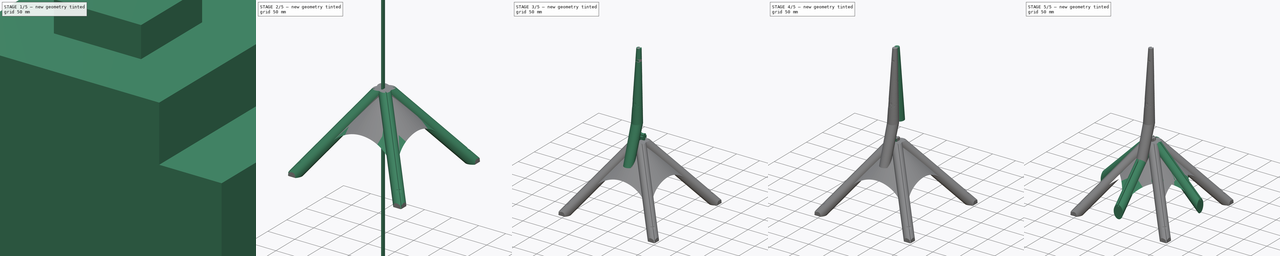
[diagram: build sequence overview — one tinted view per stage of 5, left to right]
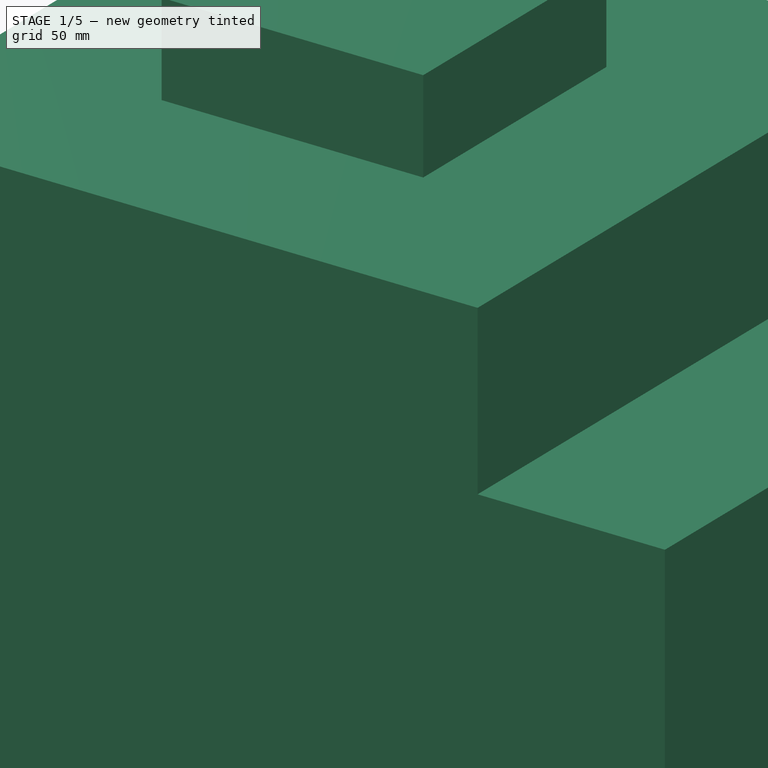
[diagram: stage 1 of 5 — iso view after this stage's code; geometry added in this stage tinted green]
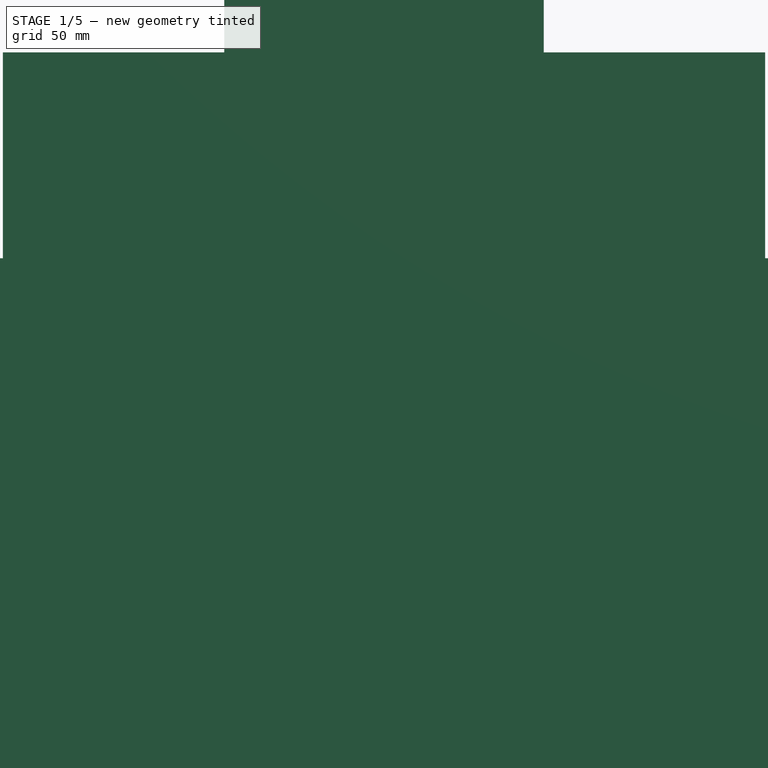
[diagram: stage 1 of 5 — front view after this stage's code; geometry added in this stage tinted green]
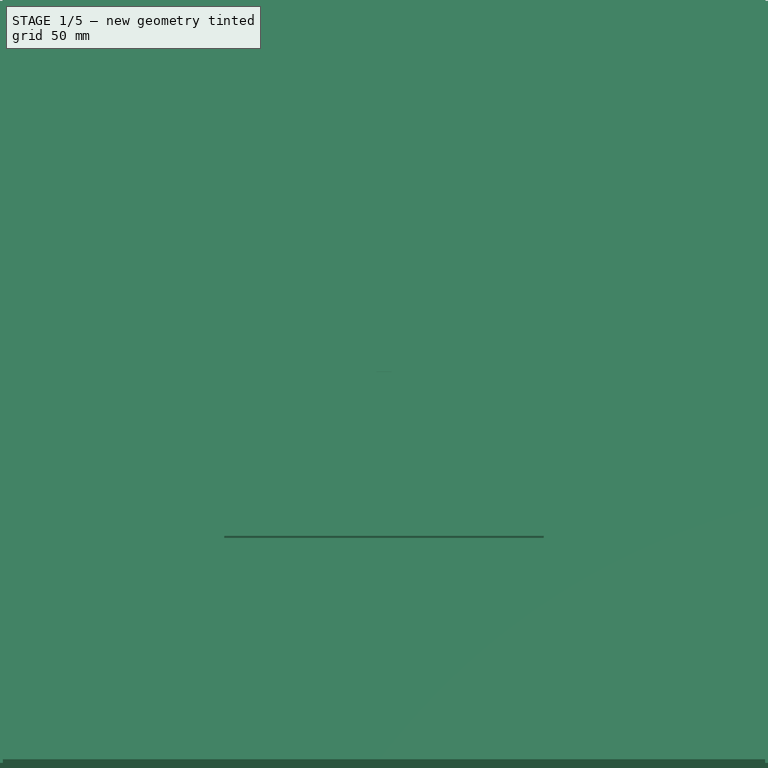
[diagram: stage 1 of 5 — top view after this stage's code; geometry added in this stage tinted green]
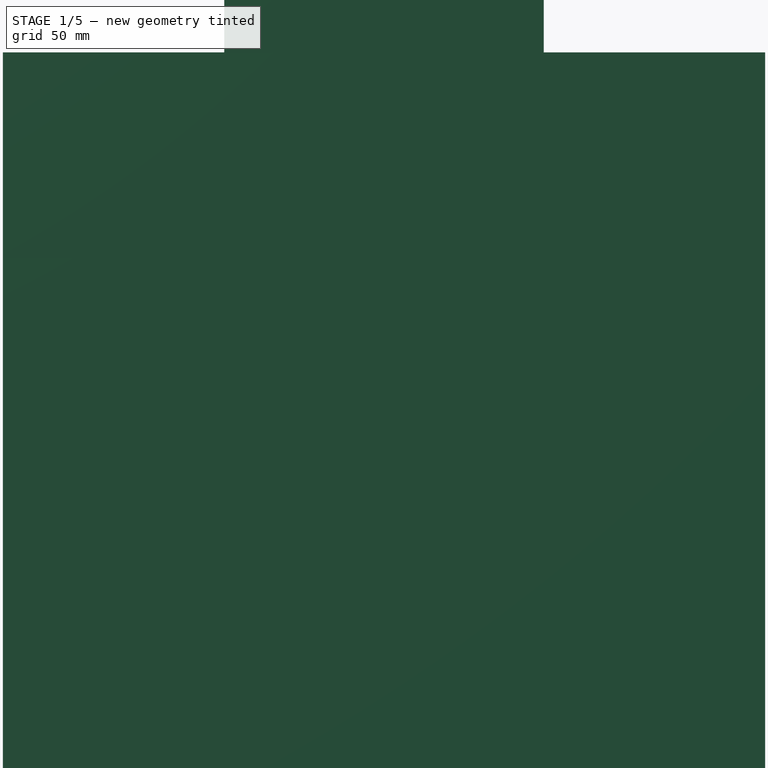
[diagram: stage 1 of 5 — right view after this stage's code; geometry added in this stage tinted green]
FCSTD DOCUMENT  (FreeCAD 0.21R31391 (Git))
Label: freestanding-mount-mk2
License: All rights reserved
LicenseURL: https://en.wikipedia.org/wiki/All_rights_reserved
objects: Sketcher::SketchObject×20, Part::Extrusion×14, Part::Cut×11, Part::MultiFuse×8, PartDesign::Plane×7, Part::FeaturePython×3, Part::MultiCommon×3, Part::Loft×2, App::Link×1, Part::Revolution×1, PartDesign::Body×1
note: 70 computed .brp shape members not serialized (recipe doc carries the construction recipe); baked Part::Feature solids carry a one-line shape summary decoded from their .brp

FEATURE [PartDesign::Plane] DatumPlane  label="zip plane"
  AttachmentOffset = pos=(0,0,180) rot=(0,0,1;0rad)
  Length = 68.4368
  MapMode = 5
  Placement = pos=(0,0,180) rot=(0,0,1;0rad)
  ResizeMode = 0
  Support = -> [XY_Plane]
  Width = 188.394
FEATURE [Sketcher::SketchObject] Sketch002  label="zip tool sk"
  ExternalGeometry = -> [Sketch001]
  FullyConstrained = true
  MapMode = 5
  Placement = pos=(0,0,180) rot=(0,0,1;0rad)
  Support = -> [DatumPlane]
  sketch-geometry (5):
    g0: LineSegment StartX=-5 StartY=0.9 StartZ=0 EndX=5 EndY=0.9 EndZ=0
    g1: LineSegment StartX=5 StartY=0.9 StartZ=0 EndX=5 EndY=10.9 EndZ=0
    g2: LineSegment StartX=5 StartY=10.9 StartZ=0 EndX=-5 EndY=10.9 EndZ=0
    g3: LineSegment StartX=-5 StartY=10.9 StartZ=0 EndX=-5 EndY=0.9 EndZ=0
    g4: Circle CenterX=0 CenterY=0 CenterZ=0 NormalX=0 NormalY=0 NormalZ=1 AngleXU=0 Radius=0.9
  constraints (13):
    c: Coincident(g0,g1)
    c: Coincident(g1,g2)
    c: Coincident(g2,g3)
    c: Coincident(g3,g0)
    c: Horizontal(g2)
    c: Vertical(g1)
    c: Vertical(g3)
    c: Coincident(g4,g-3)
    c: Tangent(g4,g0)
    c: PointOnObject(g-3,g4)
    c: Symmetric(g0,g0,g-2)
    c: Equal(g2,g1)
    c: DistanceY(g1,g1) = 10
FEATURE [Part::Extrusion] Extrude001  label="zip tool"
  Base = -> Sketch002
  Dir = (0,0,1)
  DirMode = 2
  FaceMakerClass = Part::FaceMakerBullseye
  LengthFwd = 5
  LengthRev = 0
  Solid = true
  Symmetric = false
FEATURE [Sketcher::SketchObject] Sketch007  label="cone sk"
  ExternalGeometry = -> [Sketch003,Sketch]
  FullyConstrained = true
  MapMode = 5
  Placement = pos=(0,0,0) rot=(0.57735,0.57735,0.57735;2.0944rad)
  Support = -> [YZ_Plane]
  sketch-geometry (5):
    g0: LineSegment StartX=3.68629 StartY=-15 StartZ=0 EndX=98.6432 EndY=-109.957 EndZ=0
    g1: LineSegment StartX=98.6432 StartY=-109.957 StartZ=0 EndX=0 EndY=-109.957 EndZ=0
    g2: LineSegment StartX=0 StartY=-109.957 StartZ=0 EndX=0 EndY=-15 EndZ=0
    g3: LineSegment StartX=0 StartY=-15 StartZ=0 EndX=3.68629 EndY=-15 EndZ=0
    g4: LineSegment StartX=3.68629 StartY=-15 StartZ=0 EndX=9.34315 EndY=-9.34315 EndZ=0
  constraints (15):
    c: Horizontal(g1)
    c: Coincident(g2,g1)
    c: PointOnObject(g2,g-3)
    c: Vertical(g2)
    c: Coincident(g3,g2)
    c: PointOnObject(g1,g-2)
    c: Angle(g0,g1) = 0.785398
    c: Coincident(g0,g1)
    c: DistanceY(g-4,g0) = 35
    c: Coincident(g3,g0)
    c: PointOnObject(g-3,g3)
    c: Coincident(g4,g0)
    c: PointOnObject(g4,g-4)
    c: Perpendicular(g-4,g4)
    c: Distance(g4) = 8
FEATURE [App::Link] Link  label="cone sk001"
  LinkTransform = true
  LinkedObject = -> Body [Sketch007.]
FEATURE [Part::Revolution] Revolve  label="cone"
  Angle = 360
  Axis = (0,0,1)
  Base = (0,0,0)
  FaceMakerClass = Part::FaceMakerBullseye
  Solid = true
  Source = -> Link
  Symmetric = false
FEATURE [Sketcher::SketchObject] Sketch008  label="leg trim tool sk"
  ExternalGeometry = -> [Sketch003]
  FullyConstrained = true
  MapMode = 5
  Placement = pos=(0,0,0) rot=(0.57735,0.57735,0.57735;2.0944rad)
  Support = -> [YZ_Plane]
  sketch-geometry (4):
    g0: LineSegment StartX=-250 StartY=-15 StartZ=0 EndX=250 EndY=-15 EndZ=0
    g1: LineSegment StartX=250 StartY=-15 StartZ=0 EndX=250 EndY=-515 EndZ=0
    g2: LineSegment StartX=250 StartY=-515 StartZ=0 EndX=-250 EndY=-515 EndZ=0
    g3: LineSegment StartX=-250 StartY=-515 StartZ=0 EndX=-250 EndY=-15 EndZ=0
  constraints (11):
    c: Coincident(g0,g1)
    c: Coincident(g1,g2)
    c: Coincident(g2,g3)
    c: Coincident(g3,g0)
    c: Horizontal(g2)
    c: Vertical(g1)
    c: Vertical(g3)
    c: PointOnObject(g-3,g0)
    c: Symmetric(g0,g0,g-2)
    c: Equal(g2,g1)
    c: DistanceY(g1,g1) = 500
FEATURE [Part::Extrusion] Extrude006  label="leg trim tool"
  Base = -> Sketch008
  Dir = (1,-1e-16,1e-16)
  DirMode = 2
  FaceMakerClass = Part::FaceMakerBullseye
  LengthFwd = 500
  LengthRev = 0
  Solid = true
  Symmetric = true
FEATURE [PartDesign::Plane] DatumPlane001  label="cone scoop plane"
  AttachmentOffset = pos=(0,0,0) rot=(1,0,0;0.785398rad)
  Length = 353.87
  MapMode = 2
  Placement = pos=(0,0,0) rot=(0.357407,0.862856,0.357407;4.56541rad)
  ResizeMode = 0
  Support = -> [Z_Axis]
  Width = 199.446
FEATURE [Sketcher::SketchObject] Sketch009  label="cone scoop tool sk"
  ExternalGeometry = -> [Sketch]
  FullyConstrained = true
  MapMode = 5
  Placement = pos=(0,0,0) rot=(-0.357407,-0.862856,-0.357407;1.71777rad)
  Support = -> [DatumPlane001]
  sketch-geometry (7):
    g0: Ellipse CenterX=-355.418 CenterY=0 CenterZ=0 NormalX=0 NormalY=0 NormalZ=1 MajorRadius=283.822 MinorRadius=134.368 AngleXU=0
    g1: LineSegment StartX=-71.5964 StartY=0 StartZ=0 EndX=-639.24 EndY=0 EndZ=0
    g2: LineSegment StartX=-355.418 StartY=134.368 StartZ=0 EndX=-355.418 EndY=-134.368 EndZ=0
    g3: GeomPoint X=-105.418 Y=0 Z=0
    g4: GeomPoint X=-605.418 Y=0 Z=0
    g5: LineSegment StartX=-119.576 StartY=74.7548 StartZ=0 EndX=-114.957 EndY=81.2868 EndZ=0
    g6: GeomPoint X=-119.576 Y=74.7548 Z=0
  constraints (12):
    c: InternalAlignment(g1-g4 -> g0) x4
    c: PointOnObject(g3,g-1)
    c: PointOnObject(g0,g-1)
    c: PointOnObject(g5,g0)
    c: PointOnObject(g5,g-3)
    c: Perpendicular(g-3,g5)
    c: Distance(g5) = 8
    c: DistanceX(g-3,g5) = 30
    c: PointOnObject(g6,g0)
    c: PointOnObject(g6,g5)
    c: Perpendicular(g0,g5,g6) = 4.71239
    c: DistanceX(g0,g3) = 250
FEATURE [Part::Extrusion] Extrude007  label="cone scoop tool"
  Base = -> Sketch009
  Dir = (-0.707107,0.707107,-5e-16)
  DirMode = 2
  FaceMakerClass = Part::FaceMakerBullseye
  LengthFwd = 600
  LengthRev = 0
  Solid = true
  Symmetric = true
FEATURE [Part::FeaturePython] Array002  # Draft array (typed FeaturePython)
  AlwaysSyncPlacement = false
  Angle = 90
  ArrayType = 1
  Axis = (0,0,1)
  Base = -> Extrude007
  Center = (0,0,0)
  Count = 2
  ExpandArray = false
  Fuse = true
  IntervalAxis = (0,0,0)
  IntervalX = (50,0,0)
  IntervalY = (0,50,0)
  IntervalZ = (0,0,50)
  NumberCircles = 3
  NumberPolar = 2
  NumberX = 2
  NumberY = 2
  NumberZ = 1
  PlacementList = 2 placements: [(0,0,0),(0,0,0)]
  RadialDistance = 50
  ScaleList = (2) [(1,1,1),(1,1,1)]
  Symmetry = 1
  TangentialDistance = 25
FEATURE [Part::Cut] Cut003  label="scooped code"
  Base = -> Revolve
  Tool = -> Array002
FEATURE [Sketcher::SketchObject] Sketch010  label="foot pad tool sk"
  ExternalGeometry = -> [Sketch]
  FullyConstrained = true
  MapMode = 5
  Placement = pos=(0,0,0) rot=(0.57735,0.57735,0.57735;2.0944rad)
  Support = -> [YZ_Plane]
  sketch-geometry (4):
    g0: LineSegment StartX=-250 StartY=-149.957 StartZ=0 EndX=250 EndY=-149.957 EndZ=0
    g1: LineSegment StartX=250 StartY=-149.957 StartZ=0 EndX=250 EndY=-649.957 EndZ=0
    g2: LineSegment StartX=250 StartY=-649.957 StartZ=0 EndX=-250 EndY=-649.957 EndZ=0
    g3: LineSegment StartX=-250 StartY=-649.957 StartZ=0 EndX=-250 EndY=-149.957 EndZ=0
  constraints (11):
    c: Coincident(g0,g1)
    c: Coincident(g1,g2)
    c: Coincident(g2,g3)
    c: Coincident(g3,g0)
    c: Horizontal(g2)
    c: Vertical(g1)
    c: Vertical(g3)
    c: Symmetric(g0,g0,g-2)
    c: Equal(g0,g1)
    c: DistanceY(g0,g-3) = 5
    c: DistanceY(g1,g1) = 500
FEATURE [Part::Extrusion] Extrude008  label="foot pad tool"
  Base = -> Sketch010
  Dir = (1,-1e-16,1e-16)
  DirMode = 2
  FaceMakerClass = Part::FaceMakerBullseye
  LengthFwd = 800
  LengthRev = 0
  Solid = true
  Symmetric = true
FEATURE [PartDesign::Plane] DatumPlane006  label="plane build plate"
  Length = 73.4521
  MapMode = 1
  Placement = pos=(8.88e-14,250,-149.957) rot=(0,0,1;0rad)
  ResizeMode = 0
  Support = -> [Sketch010]
  Width = 298.452
FEATURE [Sketcher::SketchObject] Sketch017  label="build volume sk"
  ExternalGeometry = -> [Sketch]
  FullyConstrained = true
  MapMode = 5
  Placement = pos=(8.88e-14,250,-149.957) rot=(0,0,1;0rad)
  Support = -> [DatumPlane006]
  sketch-geometry (5):
    g0: LineSegment StartX=-104.75 StartY=-145.25 StartZ=0 EndX=-104.75 EndY=-354.75 EndZ=0
    g1: LineSegment StartX=-104.75 StartY=-354.75 StartZ=0 EndX=104.75 EndY=-354.75 EndZ=0
    g2: LineSegment StartX=104.75 StartY=-354.75 StartZ=0 EndX=104.75 EndY=-145.25 EndZ=0
    g3: LineSegment StartX=104.75 StartY=-145.25 StartZ=0 EndX=-104.75 EndY=-145.25 EndZ=0
    g4: Circle CenterX=-1.071e-13 CenterY=-250 CenterZ=0 NormalX=0 NormalY=0 NormalZ=1 AngleXU=0 Radius=148.139
  constraints (14):
    c: Coincident(g0,g1)
    c: Coincident(g1,g2)
    c: Coincident(g2,g3)
    c: Coincident(g3,g0)
    c: Equal(g0,g1)
    c: Equal(g0,g2)
    c: Equal(g0,g3)
    c: PointOnObject(g0,g4)
    c: PointOnObject(g1,g4)
    c: PointOnObject(g2,g4)
    c: PointOnObject(g3,g4)
    c: Coincident(g4,g-3)
    c: Horizontal(g3)
    c: DistanceX(g3,g3) = 209.5
FEATURE [Part::Extrusion] Extrude011  label="build volume"
  Base = -> Sketch017
  Dir = (0,0,1)
  DirMode = 2
  FaceMakerClass = Part::FaceMakerBullseye
  LengthFwd = 209
  LengthRev = 0
  Solid = true
  Symmetric = false
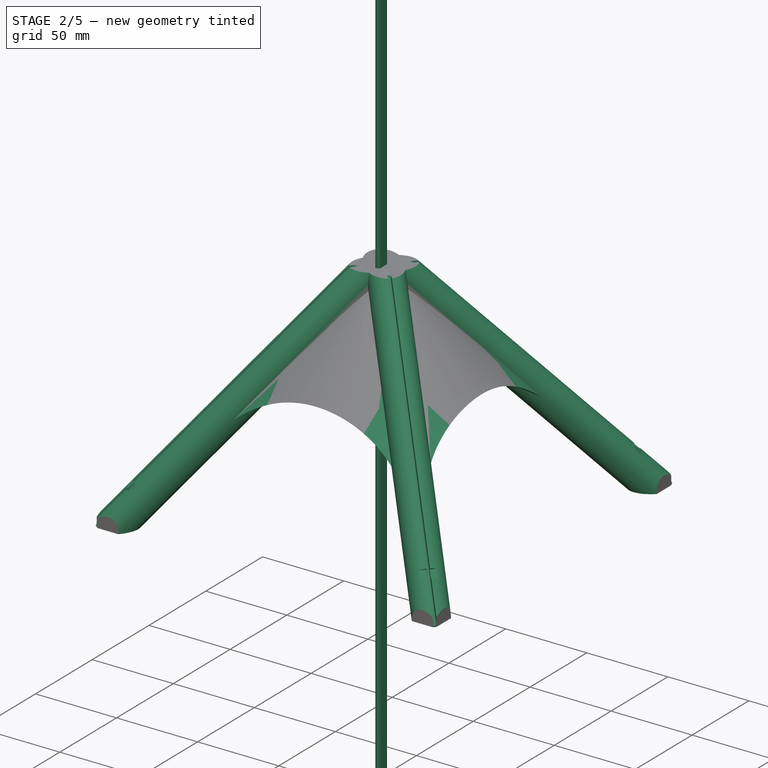
[diagram: stage 2 of 5 — iso view after this stage's code; geometry added in this stage tinted green]
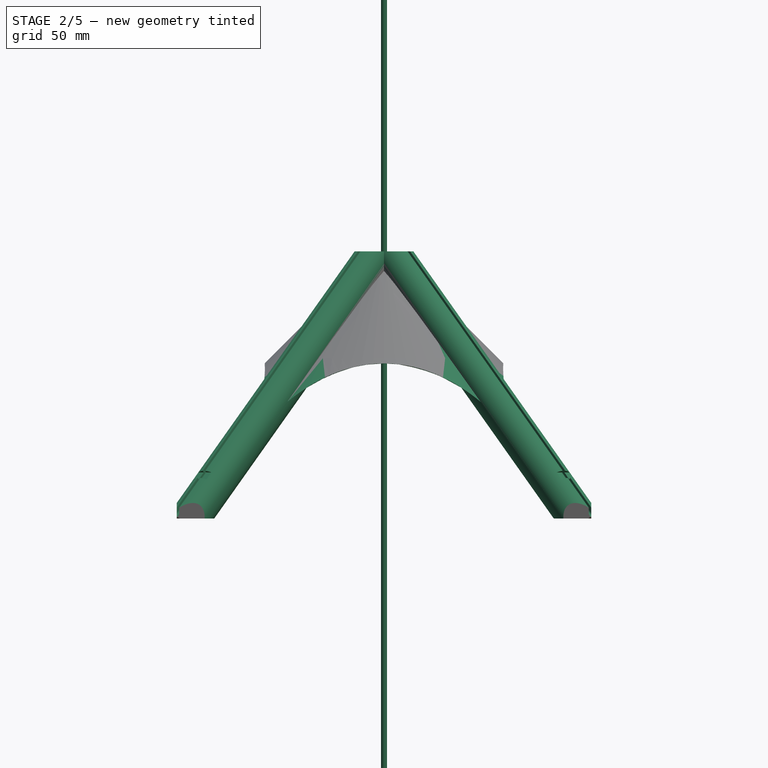
[diagram: stage 2 of 5 — front view after this stage's code; geometry added in this stage tinted green]
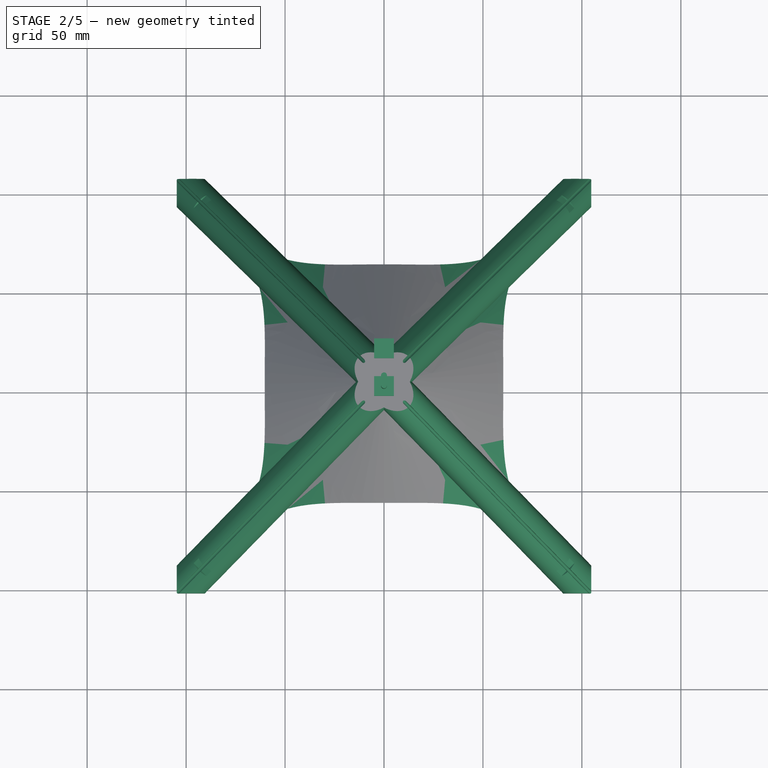
[diagram: stage 2 of 5 — top view after this stage's code; geometry added in this stage tinted green]
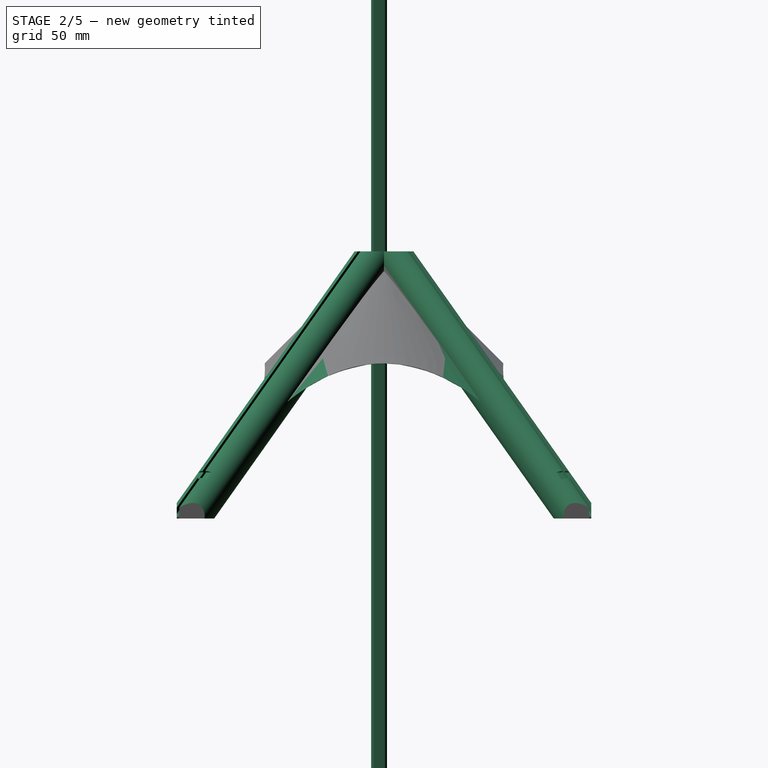
[diagram: stage 2 of 5 — right view after this stage's code; geometry added in this stage tinted green]
FEATURE [Sketcher::SketchObject] Sketch  label="plan sk"
  FullyConstrained = true
  MapMode = 5
  Placement = pos=(0,0,0) rot=(0.57735,0.57735,0.57735;2.0944rad)
  Support = -> [YZ_Plane]
  sketch-geometry (8):
    g0: LineSegment StartX=0 StartY=0 StartZ=0 EndX=144.957 EndY=-144.957 EndZ=0
    g1: Circle CenterX=0 CenterY=-10 CenterZ=0 NormalX=0 NormalY=0 NormalZ=1 AngleXU=0 Radius=2.625
    g2: LineSegment StartX=-3 StartY=-13 StartZ=0 EndX=3 EndY=-13 EndZ=0
    g3: LineSegment StartX=3 StartY=-13 StartZ=0 EndX=3 EndY=-7 EndZ=0
    g4: LineSegment StartX=3 StartY=-7 StartZ=0 EndX=-3 EndY=-7 EndZ=0
    g5: LineSegment StartX=-3 StartY=-7 StartZ=0 EndX=-3 EndY=-13 EndZ=0
    g6: Circle CenterX=0 CenterY=-10 CenterZ=0 NormalX=0 NormalY=0 NormalZ=1 AngleXU=0 Radius=4.24264
    g7: LineSegment StartX=0 StartY=0 StartZ=0 EndX=0 EndY=165 EndZ=0
  constraints (23):
    c: Coincident(g0,g-1)
    c: PointOnObject(g1,g-2)
    c: Coincident(g2,g3)
    c: Coincident(g3,g4)
    c: Coincident(g4,g5)
    c: Coincident(g5,g2)
    c: Equal(g2,g3)
    c: Equal(g2,g4)
    c: Equal(g2,g5)
    c: PointOnObject(g2,g6)
    c: PointOnObject(g3,g6)
    c: PointOnObject(g4,g6)
    c: PointOnObject(g5,g6)
    c: Coincident(g6,g1)
    c: Horizontal(g2)
    c: DistanceX(g2,g2) = 6
    c: Diameter(g1) = 5.25
    c: DistanceY(g1,g0) = 10
    c: Angle(g0,g-1) = 0.785398
    c: Distance(g0) = 205
    c: Coincident(g7,g0)
    c: PointOnObject(g7,g-2)
    c: DistanceY(g7,g7) = 165
FEATURE [Sketcher::SketchObject] Sketch001  label="leg sk"
  FullyConstrained = true
  MapMode = 5
  Support = -> [XY_Plane]
  sketch-geometry (4):
    g0: ArcOfCircle CenterX=0 CenterY=0 CenterZ=0 NormalX=0 NormalY=0 NormalZ=1 AngleXU=0 Radius=0.9 StartAngle=3.14159 EndAngle=6.28319
    g1: LineSegment StartX=0.9 StartY=-2e-16 StartZ=0 EndX=0.9 EndY=1.95942 EndZ=0
    g2: LineSegment StartX=-0.9 StartY=1.95942 StartZ=0 EndX=-0.9 EndY=0 EndZ=0
    g3: ArcOfCircle CenterX=0 CenterY=-8 CenterZ=0 NormalX=0 NormalY=0 NormalZ=1 AngleXU=0 Radius=10 StartAngle=1.66092 EndAngle=7.76386
  constraints (11):
    c: Tangent(g0,g1) = -1.5708
    c: Tangent(g2,g0) = -1.5708
    c: Coincident(g3,g1)
    c: Coincident(g3,g2)
    c: Diameter(g3) = 20
    c: Vertical(g2)
    c: Vertical(g1)
    c: Diameter(g0) = 1.8
    c: Coincident(g0,g-1)
    c: PointOnObject(g3,g-2)
    c: DistanceY(g3,g0) = 8
FEATURE [Part::Extrusion] Extrude  label="leg"
  Base = -> Sketch001
  Dir = (0,0,1)
  DirMode = 2
  FaceMakerClass = Part::FaceMakerBullseye
  LengthFwd = 210
  LengthRev = 0
  Solid = true
  Symmetric = false
FEATURE [Part::Cut] Cut  label="leg w zip"
  Base = -> Extrude
  Placement = pos=(0,0,0) rot=(1,0,0;2.35619rad)
  Tool = -> Extrude001
FEATURE [Part::FeaturePython] Array  label="leg array"  # Draft array (typed FeaturePython)
  AlwaysSyncPlacement = false
  Angle = 360
  ArrayType = 1
  Axis = (0,0,1)
  Base = -> Cut
  Center = (0,0,0)
  Count = 4
  ExpandArray = false
  Fuse = true
  IntervalAxis = (0,0,0)
  IntervalX = (50,0,0)
  IntervalY = (0,50,0)
  IntervalZ = (0,0,50)
  NumberCircles = 3
  NumberPolar = 4
  NumberX = 2
  NumberY = 2
  NumberZ = 1
  PlacementList = 4 placements: [(0,0,0),(0,0,0),(0,0,0),(0,0,0)]
  RadialDistance = 50
  ScaleList = (4) [(1,1,1),(1,1,1),(1,1,1),(1,1,1)]
  Symmetry = 1
  TangentialDistance = 25
FEATURE [Part::MultiCommon] Common  label="trimmed legs"
  Shapes = -> [Array,Extrude006]
FEATURE [Part::MultiFuse] Fusion001  label="fuse-legs-cone"
  Shapes = -> [Cut003,Common]
FEATURE [Part::Cut] Cut004  label="foot pad cut"
  Base = -> Fusion001
  Placement = pos=(0,0,0) rot=(0,0,1;0.785398rad)
  Tool = -> Extrude008
FEATURE [Sketcher::SketchObject] Sketch015  label="mast slot sk"
  ExternalGeometry = -> [Sketch]
  FullyConstrained = true
  MapMode = 5
  Placement = pos=(-3.55e-14,8,168) rot=(0,0,1;0rad)
  Support = -> [DatumPlane004]
  sketch-geometry (4):
    g0: ArcOfCircle CenterX=-1.1e-15 CenterY=-8 CenterZ=0 NormalX=0 NormalY=0 NormalZ=1 AngleXU=0 Radius=1.5 StartAngle=3e-16 EndAngle=3.14159
    g1: ArcOfCircle CenterX=0 CenterY=-13 CenterZ=0 NormalX=0 NormalY=0 NormalZ=1 AngleXU=0 Radius=1.5 StartAngle=3.14159 EndAngle=6.28319
    g2: LineSegment StartX=-1.5 StartY=-8 StartZ=0 EndX=-1.5 EndY=-13 EndZ=0
    g3: LineSegment StartX=1.5 StartY=-13 StartZ=0 EndX=1.5 EndY=-8 EndZ=0
  constraints (9):
    c: Tangent(g0,g2) = -1.5708
    c: Tangent(g2,g1) = -1.5708
    c: Tangent(g1,g3) = -1.5708
    c: Tangent(g3,g0) = -1.5708
    c: Equal(g0,g1)
    c: PointOnObject(g1,g-2)
    c: Diameter(g0) = 3
    c: Coincident(g0,g-3)
    c: Distance(g3) = 5
FEATURE [Part::Extrusion] Extrude009  label="mast slot tool"
  Base = -> Sketch015
  Dir = (0,0,1)
  DirMode = 2
  FaceMakerClass = Part::FaceMakerBullseye
  LengthFwd = 500
  LengthRev = 0
  Reversed = true
  Solid = true
  Symmetric = false
FEATURE [PartDesign::Plane] DatumPlane005  label="plane mast zip"
  Length = 68.4368
  MapMode = 1
  Placement = pos=(-3.18e-14,3.18e-14,143) rot=(0,0,1;0rad)
  ResizeMode = 0
  Support = -> [Sketch011]
  Width = 188.394
FEATURE [Sketcher::SketchObject] Sketch016  label="mast zip sk"
  ExternalGeometry = -> [Sketch011]
  FullyConstrained = true
  MapMode = 5
  Placement = pos=(-3.18e-14,3.18e-14,143) rot=(0,0,1;0rad)
  Support = -> [DatumPlane005]
  sketch-geometry (8):
    g0: LineSegment StartX=-5 StartY=1.1e-15 StartZ=0 EndX=5 EndY=-1.1e-15 EndZ=0
    g1: LineSegment StartX=5 StartY=-1.1e-15 StartZ=0 EndX=5 EndY=-10 EndZ=0
    g2: LineSegment StartX=5 StartY=-10 StartZ=0 EndX=-5 EndY=-10 EndZ=0
    g3: LineSegment StartX=-5 StartY=-10 StartZ=0 EndX=-5 EndY=1.8e-15 EndZ=0
    g4: LineSegment StartX=-5 StartY=9.06897 StartZ=0 EndX=5 EndY=9.06897 EndZ=0
    g5: LineSegment StartX=5 StartY=9.06897 StartZ=0 EndX=5 EndY=19.069 EndZ=0
    g6: LineSegment StartX=5 StartY=19.069 StartZ=0 EndX=-5 EndY=19.069 EndZ=0
    g7: LineSegment StartX=-5 StartY=19.069 StartZ=0 EndX=-5 EndY=9.06897 EndZ=0
  constraints (22):
    c: Coincident(g0,g1)
    c: Coincident(g1,g2)
    c: Coincident(g2,g3)
    c: Coincident(g3,g0)
    c: Horizontal(g2)
    c: Vertical(g1)
    c: Vertical(g3)
    c: PointOnObject(g-3,g0)
    c: Coincident(g4,g5)
    c: Coincident(g5,g6)
    c: Coincident(g6,g7)
    c: Coincident(g7,g4)
    c: Horizontal(g6)
    c: Vertical(g5)
    c: Vertical(g7)
    c: Equal(g4,g5)
    c: Equal(g5,g0)
    c: Equal(g0,g1)
    c: DistanceY(g4,g-3) = 1
    c: Symmetric(g4,g4,g-2)
    c: Symmetric(g0,g0,g-3)
    c: DistanceX(g2,g2) = 10
FEATURE [Part::Extrusion] Extrude010  label="mast zip tool"
  Base = -> Sketch016
  Dir = (0,0,1)
  DirMode = 2
  FaceMakerClass = Part::FaceMakerBullseye
  LengthFwd = 4
  LengthRev = 0
  Solid = true
  Symmetric = false
FEATURE [Part::MultiCommon] Common002  label="fit feet"
  Shapes = -> [Cut004,Extrude011]
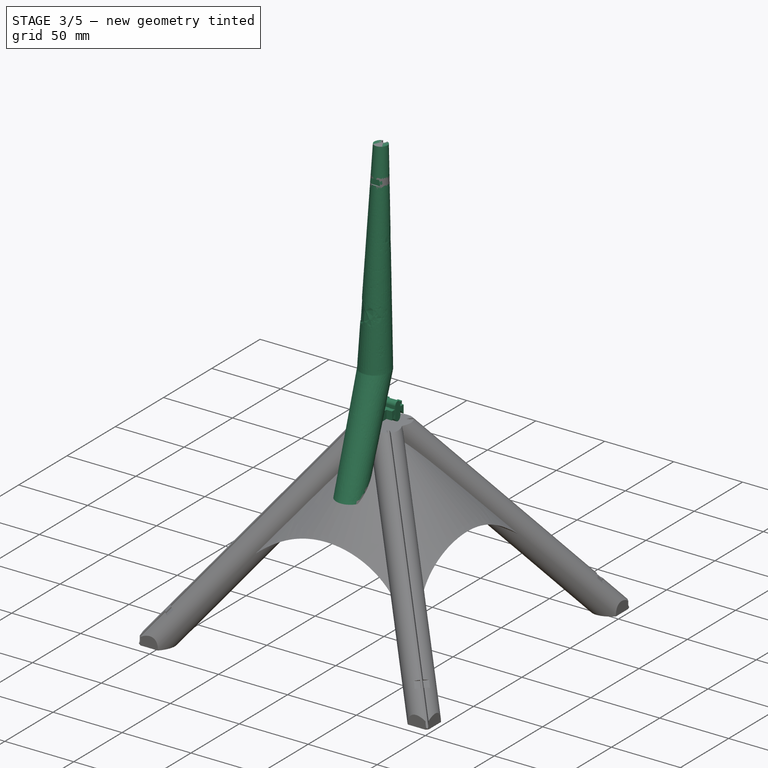
[diagram: stage 3 of 5 — iso view after this stage's code; geometry added in this stage tinted green]
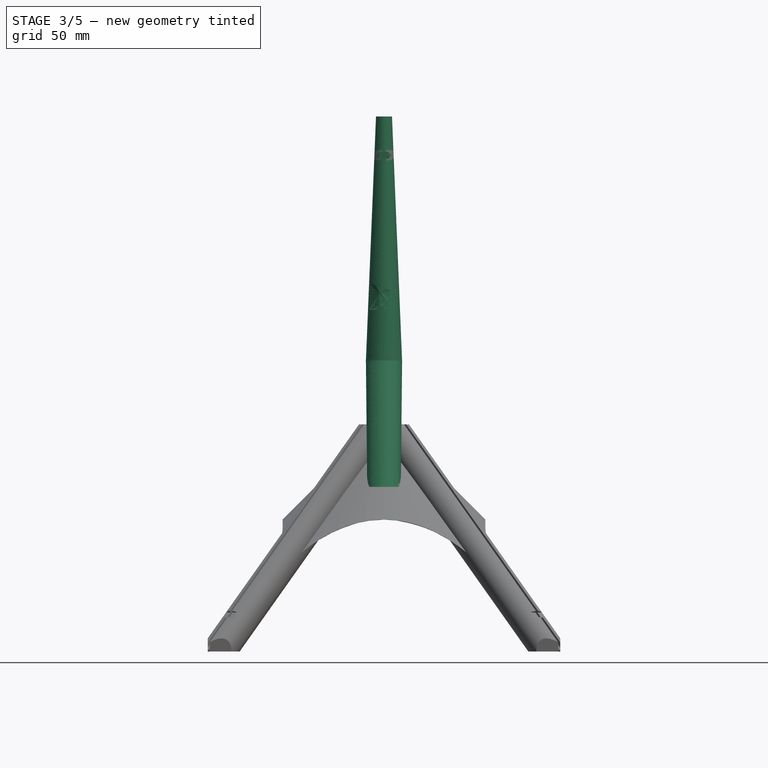
[diagram: stage 3 of 5 — front view after this stage's code; geometry added in this stage tinted green]
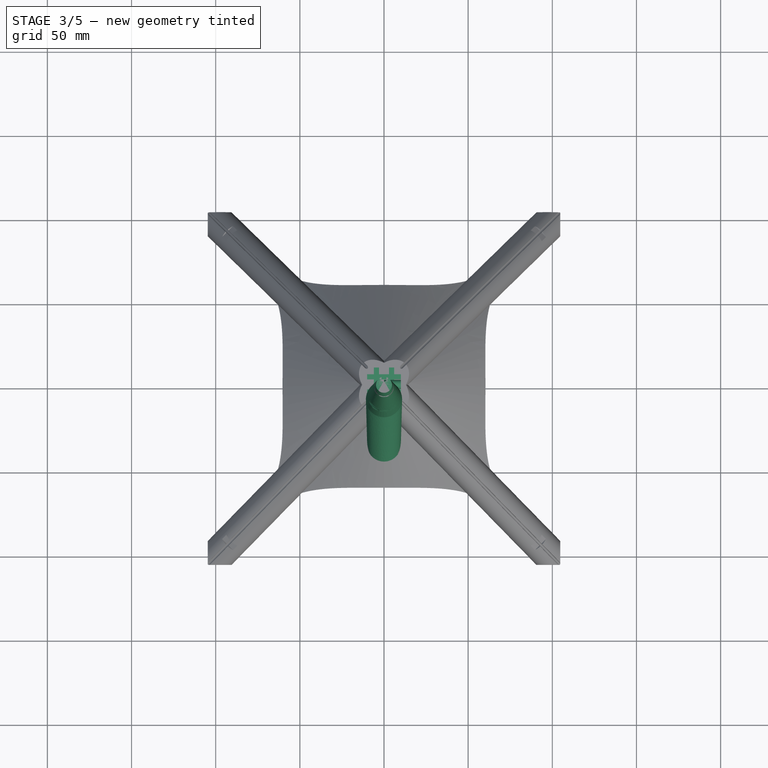
[diagram: stage 3 of 5 — top view after this stage's code; geometry added in this stage tinted green]
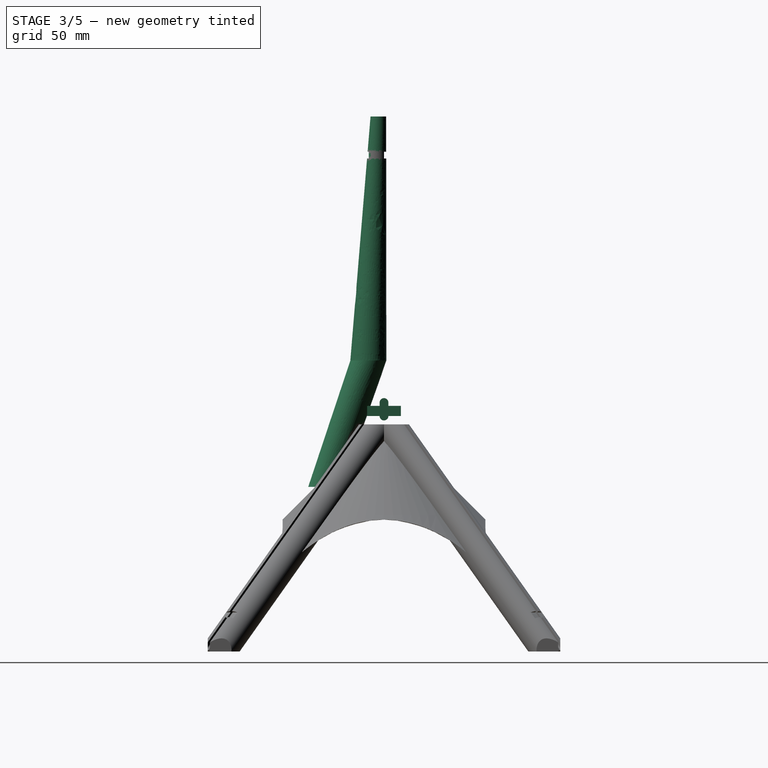
[diagram: stage 3 of 5 — right view after this stage's code; geometry added in this stage tinted green]
FEATURE [Part::Extrusion] Extrude004  label="sma hole"
  Base = -> Sketch005
  Dir = (1,-1e-16,1e-16)
  DirMode = 2
  FaceMakerClass = Part::FaceMakerBullseye
  LengthFwd = 10
  LengthRev = 0
  Solid = true
  Symmetric = false
FEATURE [Sketcher::SketchObject] Sketch006  label="sma trimmer sk"
  ExternalGeometry = -> [Sketch]
  FullyConstrained = true
  MapMode = 5
  Placement = pos=(0,0,0) rot=(0.57735,0.57735,0.57735;2.0944rad)
  Support = -> [YZ_Plane]
  sketch-geometry (4):
    g0: LineSegment StartX=-3 StartY=-7 StartZ=0 EndX=-6 EndY=-10 EndZ=0
    g1: LineSegment StartX=-6 StartY=-10 StartZ=0 EndX=-6 EndY=-4 EndZ=0
    g2: LineSegment StartX=-6 StartY=-4 StartZ=0 EndX=-3 EndY=-4 EndZ=0
    g3: LineSegment StartX=-3 StartY=-4 StartZ=0 EndX=-3 EndY=-7 EndZ=0
  constraints (11):
    c: Coincident(g0,g-3)
    c: Coincident(g1,g0)
    c: Vertical(g1)
    c: Coincident(g2,g1)
    c: Horizontal(g2)
    c: Coincident(g3,g2)
    c: Coincident(g3,g0)
    c: Vertical(g3)
    c: Equal(g2,g3)
    c: DistanceX(g2,g2) = 3
    c: Angle(g0,g-3) = 2.35619
FEATURE [Part::Extrusion] Extrude005  label="sma trimmer"
  Base = -> Sketch006
  Dir = (1,-1e-16,1e-16)
  DirMode = 2
  FaceMakerClass = Part::FaceMakerBullseye
  LengthFwd = 20
  LengthRev = 0
  Solid = true
  Symmetric = true
FEATURE [Part::FeaturePython] Array001  # Draft array (typed FeaturePython)
  AlwaysSyncPlacement = false
  Angle = 360
  ArrayType = 1
  Axis = (0,0,1)
  Base = -> Extrude005
  Center = (0,0,0)
  Count = 4
  ExpandArray = false
  Fuse = true
  IntervalAxis = (0,0,0)
  IntervalX = (50,0,0)
  IntervalY = (0,50,0)
  IntervalZ = (0,0,50)
  NumberCircles = 3
  NumberPolar = 4
  NumberX = 2
  NumberY = 2
  NumberZ = 1
  PlacementList = 4 placements: [(0,0,0),(0,0,0),(0,0,0),(0,0,0)]
  RadialDistance = 50
  ScaleList = (4) [(1,1,1),(1,1,1),(1,1,1),(1,1,1)]
  Symmetry = 1
  TangentialDistance = 25
FEATURE [Sketcher::SketchObject] Sketch011  label="mast scaffold sk"
  ExternalGeometry = -> [Sketch,Sketch003]
  FullyConstrained = true
  MapMode = 5
  Placement = pos=(0,0,0) rot=(0.57735,0.57735,0.57735;2.0944rad)
  Support = -> [YZ_Plane]
  sketch-geometry (11):
    g0: LineSegment StartX=8 StartY=168 StartZ=0 EndX=20 EndY=23 EndZ=0
    g1: LineSegment StartX=15.0355 StartY=-22.1066 StartZ=0 EndX=0 EndY=23 EndZ=0
    g2: LineSegment StartX=15.0355 StartY=-22.1066 StartZ=0 EndX=45.0355 EndY=-52.1066 EndZ=0
    g3: LineSegment StartX=15.0355 StartY=-22.1066 StartZ=0 EndX=18.5711 EndY=-18.5711 EndZ=0
    g4: LineSegment StartX=5 StartY=-7 StartZ=0 EndX=10 EndY=-7 EndZ=0
    g5: LineSegment StartX=20 StartY=23 StartZ=0 EndX=45.0355 EndY=-52.1066 EndZ=0
    g6: LineSegment StartX=0 StartY=23 StartZ=0 EndX=20 EndY=23 EndZ=0
    g7: LineSegment StartX=15.0355 StartY=-22.1066 StartZ=0 EndX=25.0355 EndY=-52.1066 EndZ=0
    g8: LineSegment StartX=25.0355 StartY=-52.1066 StartZ=0 EndX=45.0355 EndY=-52.1066 EndZ=0
    g9: LineSegment StartX=8 StartY=168 StartZ=0 EndX=-1.5 EndY=168 EndZ=0
    g10: LineSegment StartX=10.069 StartY=143 StartZ=0 EndX=0 EndY=143 EndZ=0
  constraints (33):
    c: PointOnObject(g1,g-2)
    c: Coincident(g2,g1)
    c: Parallel(g2,g-3)
    c: Coincident(g3,g1)
    c: PointOnObject(g3,g-3)
    c: Perpendicular(g-3,g3)
    c: Distance(g3) = 5
    c: DistanceY(g-4,g0) = 3
    c: DistanceX(g-4,g0) = 8
    c: Coincident(g4,g-5)
    c: Horizontal(g4)
    c: Distance(g4) = 5
    c: PointOnObject(g4,g1)
    c: DistanceY(g4,g1) = 30
    c: Coincident(g5,g0)
    c: Coincident(g5,g2)
    c: Coincident(g6,g1)
    c: Coincident(g6,g0)
    c: Horizontal(g6)
    c: Distance(g6) = 20
    c: Parallel(g1,g5)
    c: Coincident(g7,g1)
    c: Parallel(g7,g1)
    c: Coincident(g8,g7)
    c: Coincident(g8,g2)
    c: Horizontal(g8)
    c: Coincident(g9,g0)
    c: Horizontal(g9)
    c: DistanceX(g9,g-4) = 1.5
    c: PointOnObject(g10,g0)
    c: PointOnObject(g10,g-4)
    c: Horizontal(g10)
    c: DistanceY(g10,g9) = 25
FEATURE [PartDesign::Plane] DatumPlane002  label="plane mast low"
  Length = 68.4368
  MapMode = 1
  Placement = pos=(1.71e-14,25.0355,-52.1066) rot=(0,0,1;0rad)
  ResizeMode = 0
  Support = -> [Sketch011]
  Width = 188.394
FEATURE [PartDesign::Plane] DatumPlane003  label="plane mast mid"
  Length = 68.4368
  MapMode = 1
  Placement = pos=(-7e-16,20,23) rot=(0,0,1;0rad)
  ResizeMode = 0
  Support = -> [Sketch011]
  Width = 188.394
FEATURE [PartDesign::Plane] DatumPlane004  label="plane mast high"
  Length = 68.4368
  MapMode = 1
  Placement = pos=(-3.55e-14,8,168) rot=(0,0,1;0rad)
  ResizeMode = 0
  Support = -> [Sketch011]
  Width = 188.394
FEATURE [Sketcher::SketchObject] Sketch012  label="mast low sk"
  ExternalGeometry = -> [Sketch011]
  FullyConstrained = true
  MapMode = 5
  Placement = pos=(1.71e-14,25.0355,-52.1066) rot=(0,0,1;0rad)
  Support = -> [DatumPlane002]
  sketch-geometry (1):
    g0: Circle CenterX=2.2e-15 CenterY=10 CenterZ=0 NormalX=0 NormalY=0 NormalZ=1 AngleXU=0 Radius=10
  constraints (3):
    c: PointOnObject(g0,g-3)
    c: PointOnObject(g-3,g0)
    c: PointOnObject(g-3,g0)
FEATURE [Sketcher::SketchObject] Sketch013  label="mast mid sk"
  ExternalGeometry = -> [Sketch011]
  FullyConstrained = true
  MapMode = 5
  Placement = pos=(-7e-16,20,23) rot=(0,0,1;0rad)
  Support = -> [DatumPlane003]
  sketch-geometry (1):
    g0: Circle CenterX=-2.4e-15 CenterY=-10.75 CenterZ=0 NormalX=0 NormalY=0 NormalZ=1 AngleXU=0 Radius=10.75
  constraints (3):
    c: PointOnObject(g0,g-3)
    c: PointOnObject(g-3,g0)
    c: PointOnObject(g-5,g0)
FEATURE [Sketcher::SketchObject] Sketch014  label="mast high sk"
  ExternalGeometry = -> [Sketch011]
  FullyConstrained = true
  MapMode = 5
  Placement = pos=(-3.55e-14,8,168) rot=(0,0,1;0rad)
  Support = -> [DatumPlane004]
  sketch-geometry (1):
    g0: Circle CenterX=-1.1e-15 CenterY=-4.75 CenterZ=0 NormalX=0 NormalY=0 NormalZ=1 AngleXU=0 Radius=4.75
  constraints (3):
    c: PointOnObject(g0,g-3)
    c: PointOnObject(g-3,g0)
    c: PointOnObject(g-3,g0)
FEATURE [Part::Loft] Loft002  label="lower mast"
  Closed = false
  MaxDegree = 5
  Ruled = false
  Sections = -> [Sketch012,Sketch013]
  Solid = true
FEATURE [Part::Loft] Loft  label="upper mast loft"
  Closed = false
  MaxDegree = 5
  Ruled = false
  Sections = -> [Sketch013,Sketch014]
  Solid = true
FEATURE [Part::MultiFuse] Fusion005  label="solid mast"
  Shapes = -> [Loft,Loft002]
FEATURE [Part::MultiFuse] Fusion006  label="mast cuts"
  Shapes = -> [Extrude009,Extrude010]
FEATURE [Part::Cut] Cut010  label="solid mast001"
  Base = -> Fusion005
  Placement = pos=(0,0,0) rot=(0,0,1;3.14159rad)
  Tool = -> Fusion006
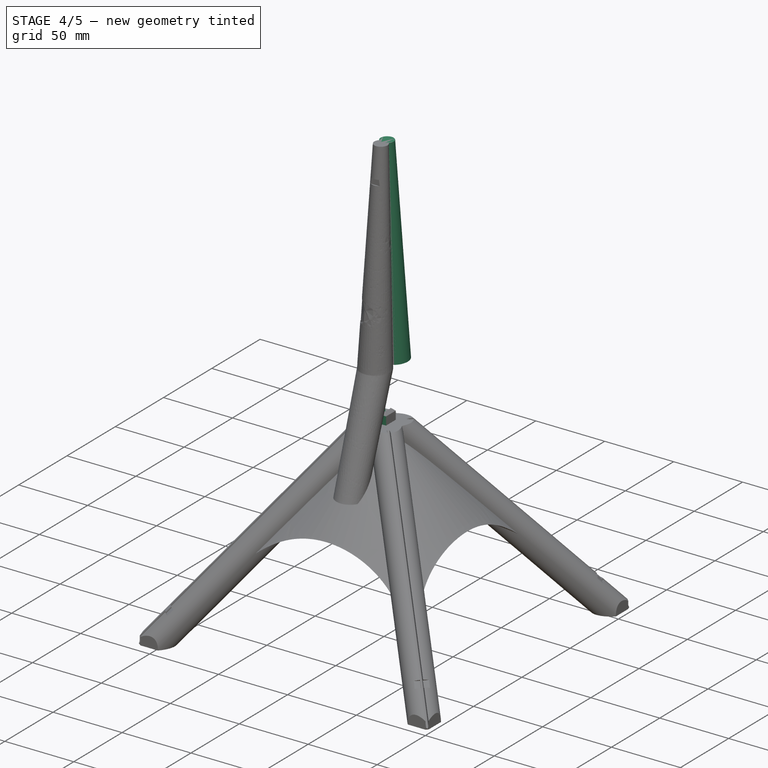
[diagram: stage 4 of 5 — iso view after this stage's code; geometry added in this stage tinted green]
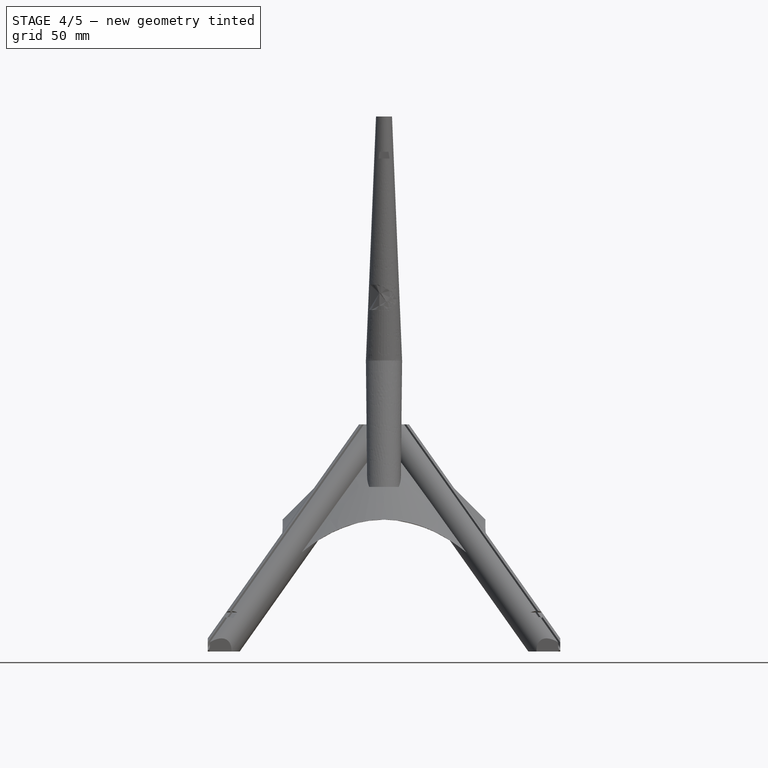
[diagram: stage 4 of 5 — front view after this stage's code; geometry added in this stage tinted green]
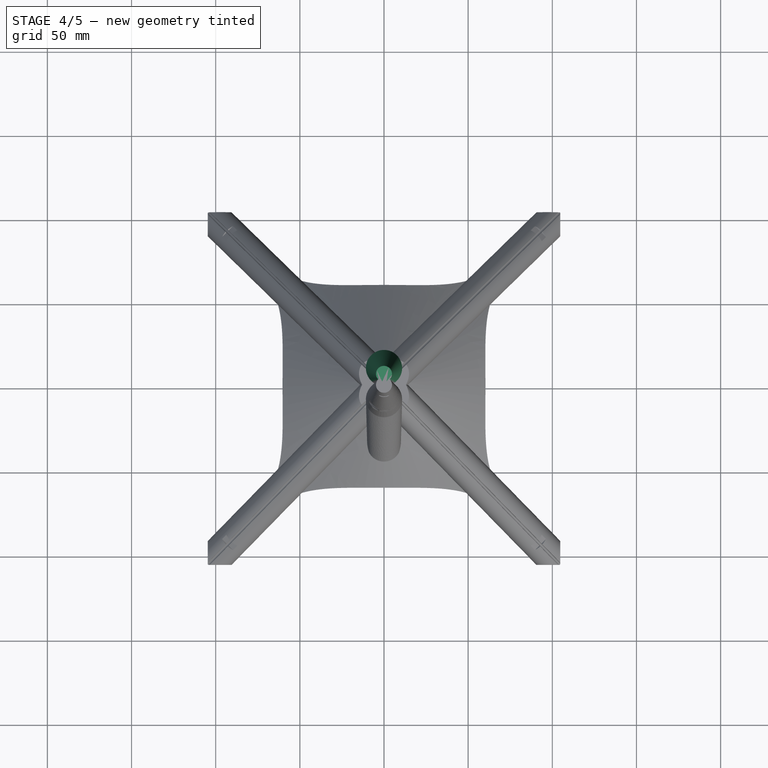
[diagram: stage 4 of 5 — top view after this stage's code; geometry added in this stage tinted green]
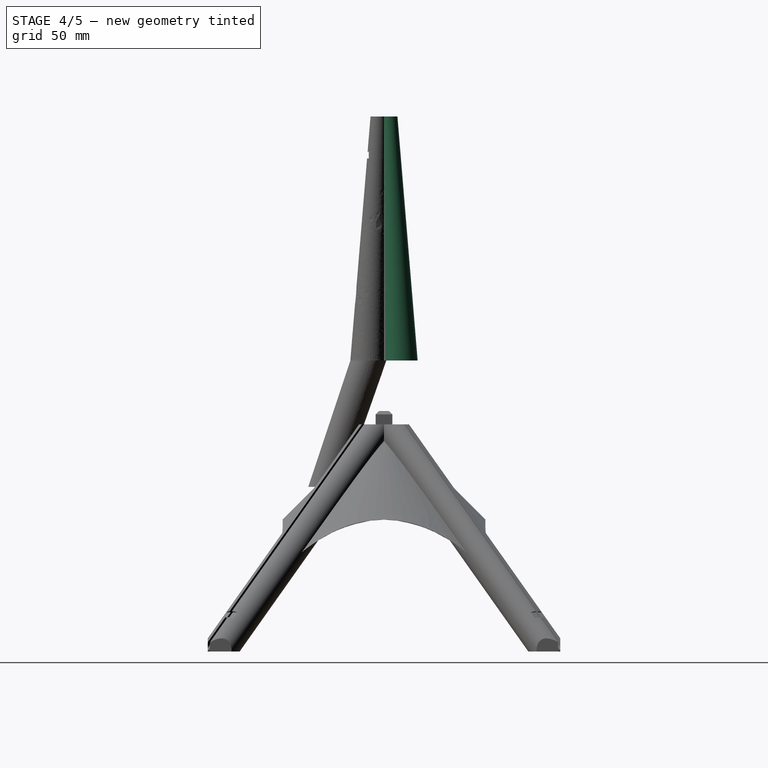
[diagram: stage 4 of 5 — right view after this stage's code; geometry added in this stage tinted green]
FEATURE [Sketcher::SketchObject] Sketch003  label="case sk"
  ExternalGeometry = -> [Sketch]
  FullyConstrained = true
  MapMode = 5
  Placement = pos=(0,0,0) rot=(0.57735,0.57735,0.57735;2.0944rad)
  Support = -> [YZ_Plane]
  sketch-geometry (7):
    g0: LineSegment StartX=-5 StartY=-7 StartZ=0 EndX=5 EndY=-7 EndZ=0
    g1: LineSegment StartX=5 StartY=-7 StartZ=0 EndX=5 EndY=-15 EndZ=0
    g2: LineSegment StartX=5 StartY=-15 StartZ=0 EndX=-5 EndY=-15 EndZ=0
    g3: LineSegment StartX=-5 StartY=-15 StartZ=0 EndX=-5 EndY=-7 EndZ=0
    g4: LineSegment StartX=-3 StartY=-13 StartZ=0 EndX=-5 EndY=-13 EndZ=0
    g5: LineSegment StartX=-3 StartY=-13 StartZ=0 EndX=-3 EndY=-15 EndZ=0
    g6: LineSegment StartX=3 StartY=-13 StartZ=0 EndX=5 EndY=-13 EndZ=0
  constraints (21):
    c: Coincident(g0,g1)
    c: Coincident(g1,g2)
    c: Coincident(g2,g3)
    c: Coincident(g3,g0)
    c: Horizontal(g0)
    c: Horizontal(g2)
    c: Vertical(g1)
    c: Vertical(g3)
    c: PointOnObject(g-4,g0)
    c: Coincident(g4,g-4)
    c: PointOnObject(g4,g3)
    c: Coincident(g5,g4)
    c: PointOnObject(g5,g2)
    c: Vertical(g5)
    c: Horizontal(g4)
    c: Coincident(g6,g-3)
    c: PointOnObject(g6,g1)
    c: Horizontal(g6)
    c: Equal(g6,g5)
    c: Equal(g5,g4)
    c: Distance(g6) = 2
FEATURE [Part::Extrusion] Extrude002  label="case"
  Base = -> Sketch003
  Dir = (1,-1e-16,1e-16)
  DirMode = 2
  FaceMakerClass = Part::FaceMakerBullseye
  LengthFwd = 10
  LengthRev = 0
  Solid = true
  Symmetric = true
FEATURE [Sketcher::SketchObject] Sketch004  label="slot sk"
  ExternalGeometry = -> [Sketch]
  FullyConstrained = true
  MapMode = 5
  Placement = pos=(0,0,0) rot=(0.57735,0.57735,0.57735;2.0944rad)
  Support = -> [YZ_Plane]
  sketch-geometry (4):
    g0: LineSegment StartX=-3 StartY=-13 StartZ=0 EndX=3 EndY=-13 EndZ=0
    g1: LineSegment StartX=3 StartY=-13 StartZ=0 EndX=3 EndY=-5 EndZ=0
    g2: LineSegment StartX=3 StartY=-5 StartZ=0 EndX=-3 EndY=-5 EndZ=0
    g3: LineSegment StartX=-3 StartY=-5 StartZ=0 EndX=-3 EndY=-13 EndZ=0
  constraints (11):
    c: Coincident(g0,g1)
    c: Coincident(g1,g2)
    c: Coincident(g2,g3)
    c: Coincident(g3,g0)
    c: Horizontal(g0)
    c: Horizontal(g2)
    c: Vertical(g1)
    c: Vertical(g3)
    c: Coincident(g0,g-3)
    c: PointOnObject(g-4,g1)
    c: DistanceY(g-4,g1) = 2
FEATURE [Sketcher::SketchObject] Sketch005  label="sma hole sk"
  ExternalGeometry = -> [Sketch]
  FullyConstrained = true
  MapMode = 5
  Placement = pos=(0,0,0) rot=(0.57735,0.57735,0.57735;2.0944rad)
  Support = -> [YZ_Plane]
  sketch-geometry (4):
    g0: ArcOfCircle CenterX=0 CenterY=-10 CenterZ=0 NormalX=0 NormalY=0 NormalZ=1 AngleXU=0 Radius=2.625 StartAngle=3.14159 EndAngle=6.28319
    g1: ArcOfCircle CenterX=0 CenterY=-2 CenterZ=0 NormalX=0 NormalY=0 NormalZ=1 AngleXU=0 Radius=2.625 StartAngle=0 EndAngle=3.14159
    g2: LineSegment StartX=2.625 StartY=-10 StartZ=0 EndX=2.625 EndY=-2 EndZ=0
    g3: LineSegment StartX=-2.625 StartY=-2 StartZ=0 EndX=-2.625 EndY=-10 EndZ=0
  constraints (9):
    c: Tangent(g0,g2) = -1.5708
    c: Tangent(g2,g1) = -1.5708
    c: Tangent(g1,g3) = -1.5708
    c: Tangent(g3,g0) = -1.5708
    c: Equal(g0,g1)
    c: Coincident(g0,g-3)
    c: PointOnObject(g1,g-2)
    c: Equal(g0,g-3)
    c: DistanceY(g2,g2) = 8
FEATURE [Part::Extrusion] Extrude003  label="slot"
  Base = -> Sketch004
  Dir = (1,-1e-16,1e-16)
  DirMode = 2
  FaceMakerClass = Part::FaceMakerBullseye
  LengthFwd = 6
  LengthRev = 0
  Solid = true
  Symmetric = true
FEATURE [Part::MultiFuse] Fusion
  Shapes = -> [Extrude003,Extrude004]
FEATURE [Part::Cut] Cut001  label="sma mount"
  Base = -> Extrude002
  Tool = -> Fusion
FEATURE [Part::Cut] Cut002  label="trimmed sma mount"
  Base = -> Cut001
  Placement = pos=(0,0,0) rot=(0,0,1;1.5708rad)
  Tool = -> Array001
FEATURE [Sketcher::SketchObject] Sketch019  label="mast hole sk"
  ExternalGeometry = -> [Sketch018]
  FullyConstrained = true
  MapMode = 5
  Placement = pos=(-7e-16,20,23) rot=(0,0,1;0rad)
  Support = -> [DatumPlane003]
  sketch-geometry (2):
    g0: Circle CenterX=0 CenterY=-10.75 CenterZ=0 NormalX=0 NormalY=0 NormalZ=1 AngleXU=0 Radius=3
    g1: LineSegment StartX=2.9 StartY=-10.75 StartZ=0 EndX=3 EndY=-10.75 EndZ=0
  constraints (6):
    c: Coincident(g0,g-3)
    c: PointOnObject(g1,g-3)
    c: PointOnObject(g1,g0)
    c: Horizontal(g1)
    c: Perpendicular(g-3,g1)
    c: Distance(g1) = 0.1
FEATURE [PartDesign::Body] Body
  Group = -> [Sketch,Sketch001,DatumPlane,Sketch002,Sketch003,Sketch004,Sketch005,Sketch006,Sketch007,Sketch008,Sketch009,DatumPlane001,Sketch010,Sketch011,DatumPlane002,DatumPlane003,DatumPlane004,Sketch012,Sketch013,Sketch014,Sketch015,DatumPlane005,Sketch016,DatumPlane006,Sketch017,Sketch018,Sketch019]
  Origin = -> Origin
FEATURE [Part::Extrusion] Extrude013  label="upper mast hole"
  Base = -> Sketch019
  Dir = (0,0,1)
  DirMode = 2
  FaceMakerClass = Part::FaceMakerBullseye
  LengthFwd = 10.2
  LengthRev = 0
  Solid = true
  Symmetric = false
FEATURE [Part::Cut] Cut007
  Base = -> Loft
  Tool = -> Extrude013
FEATURE [Part::MultiFuse] Fusion008  label="mount and mast"
  Shapes = -> [Cut002,Cut010]
FEATURE [Part::MultiFuse] Fusion009  label="single"
  Shapes = -> [Fusion008,Common002]
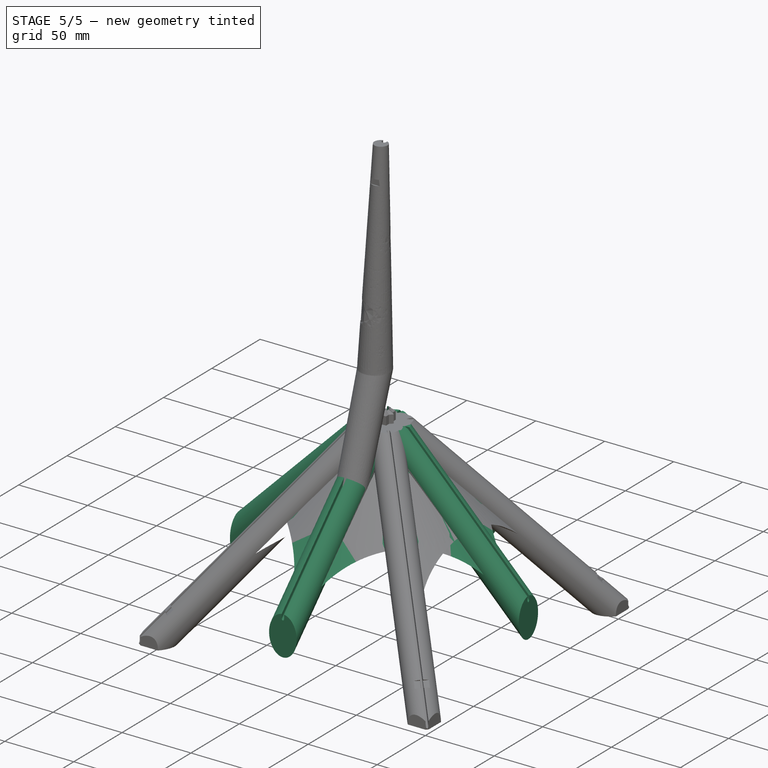
[diagram: stage 5 of 5 — iso view after this stage's code; geometry added in this stage tinted green]
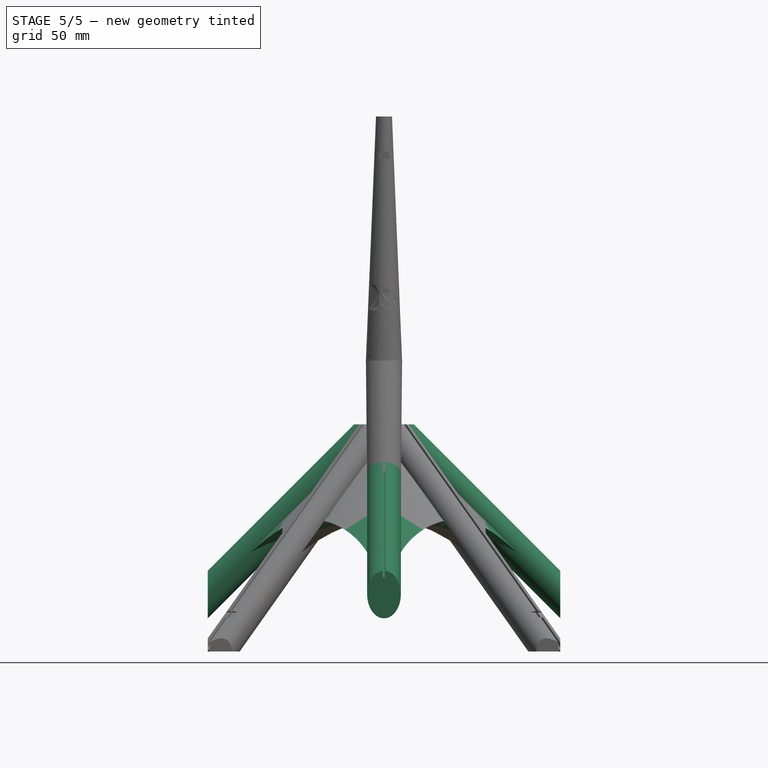
[diagram: stage 5 of 5 — front view after this stage's code; geometry added in this stage tinted green]
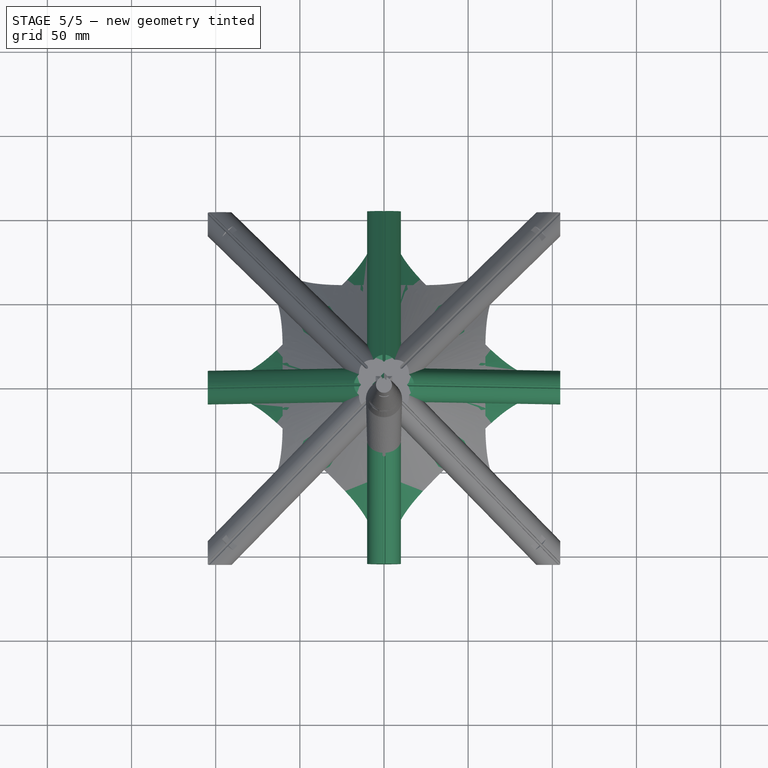
[diagram: stage 5 of 5 — top view after this stage's code; geometry added in this stage tinted green]
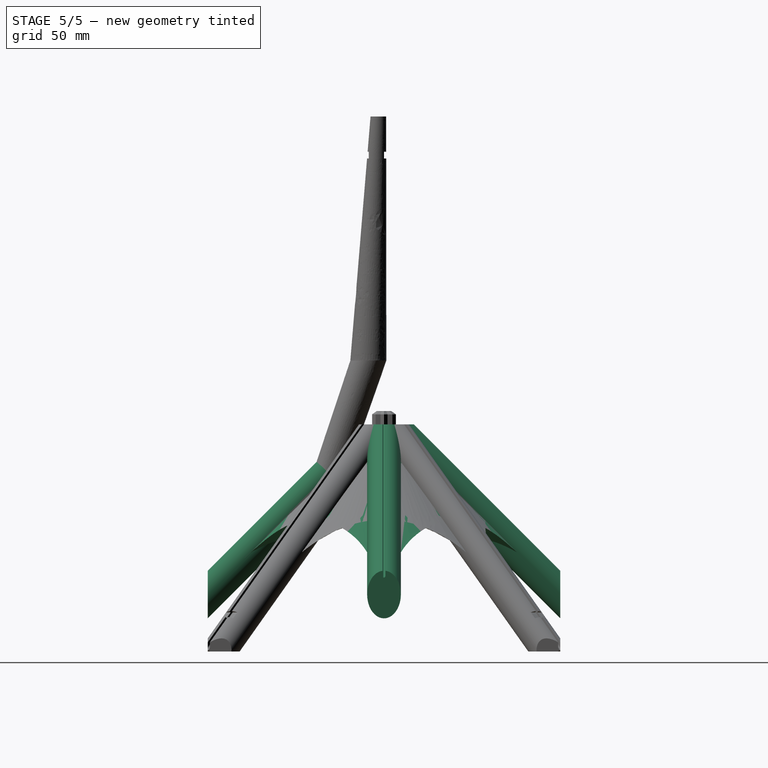
[diagram: stage 5 of 5 — right view after this stage's code; geometry added in this stage tinted green]
FEATURE [Sketcher::SketchObject] Sketch018  label="mast pin sk"
  ExternalGeometry = -> [Sketch013]
  FullyConstrained = true
  MapMode = 5
  Placement = pos=(-7e-16,20,23) rot=(0,0,1;0rad)
  Support = -> [DatumPlane003]
  sketch-geometry (1):
    g0: Circle CenterX=0 CenterY=-10.75 CenterZ=0 NormalX=0 NormalY=0 NormalZ=1 AngleXU=0 Radius=2.9
  constraints (2):
    c: Coincident(g0,g-3)
    c: Diameter(g0) = 5.8
FEATURE [Part::Extrusion] Extrude012  label="mast pin"
  Base = -> Sketch018
  Dir = (0,0,1)
  DirMode = 2
  FaceMakerClass = Part::FaceMakerBullseye
  LengthFwd = 10
  LengthRev = 0
  Solid = true
  Symmetric = false
FEATURE [Part::MultiFuse] Fusion004  label="mast plus pin"
  Shapes = -> [Extrude012,Loft002]
FEATURE [Part::Cut] Cut005
  Base = -> Fusion004
  Tool = -> Extrude009
FEATURE [Part::Cut] Cut006  label="mast"
  Base = -> Cut005
  Placement = pos=(0,0,0) rot=(0,0,1;2.35619rad)
  Tool = -> Extrude010
FEATURE [Part::MultiFuse] Fusion003
  Placement = pos=(0,0,0) rot=(0,0,1;0.785398rad)
  Shapes = -> [Cut006,Cut002,Cut004]
FEATURE [Part::MultiCommon] Common001  label="bottom"
  Shapes = -> [Fusion003,Extrude011]
FEATURE [Part::Cut] Cut009
  Base = -> Cut007
  Tool = -> Extrude010
FEATURE [Part::Cut] Cut008  label="upper mast"
  Base = -> Cut009
  Placement = pos=(0,0,0) rot=(0,0,1;3.14159rad)
  Tool = -> Extrude009
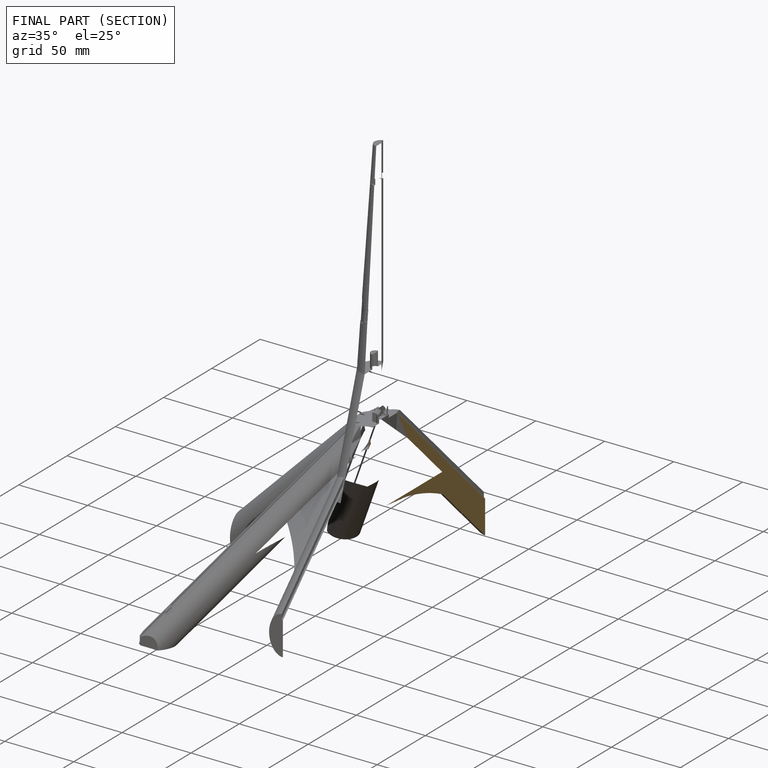
[diagram: finished part — half-section view (interior)]
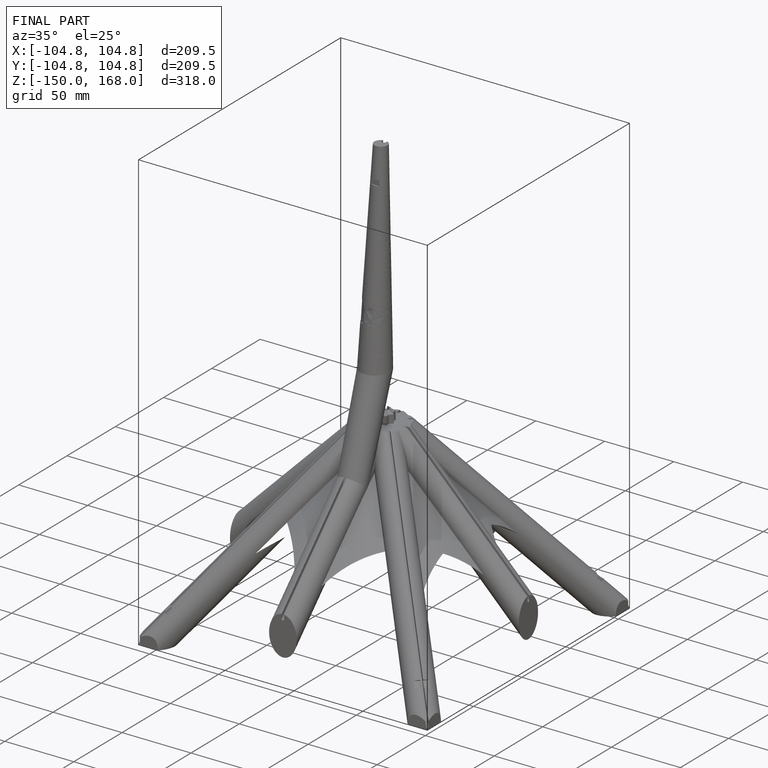
[diagram: finished part — iso view with bounding-box wireframe]
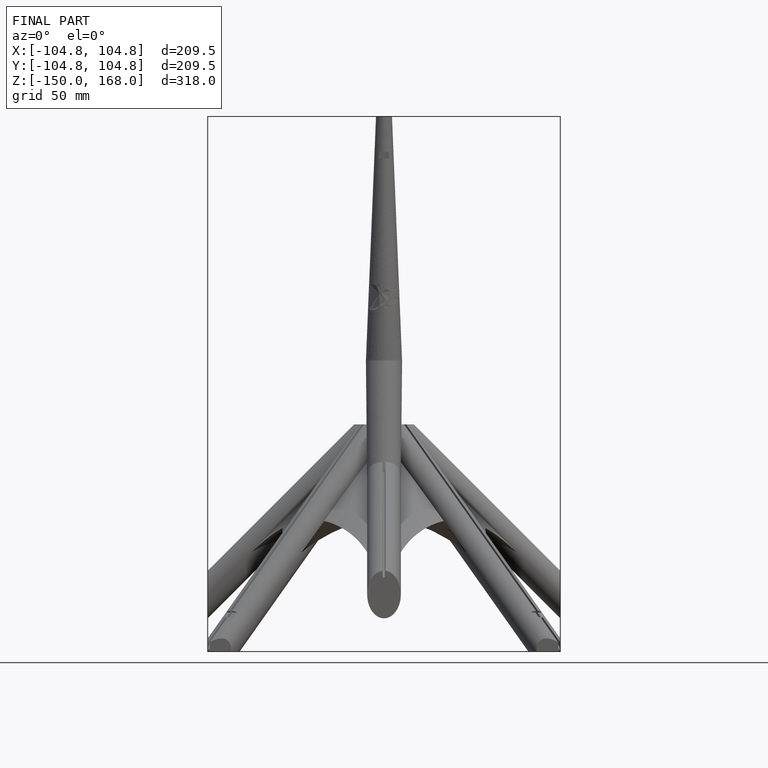
[diagram: finished part — front view with bounding-box wireframe]
